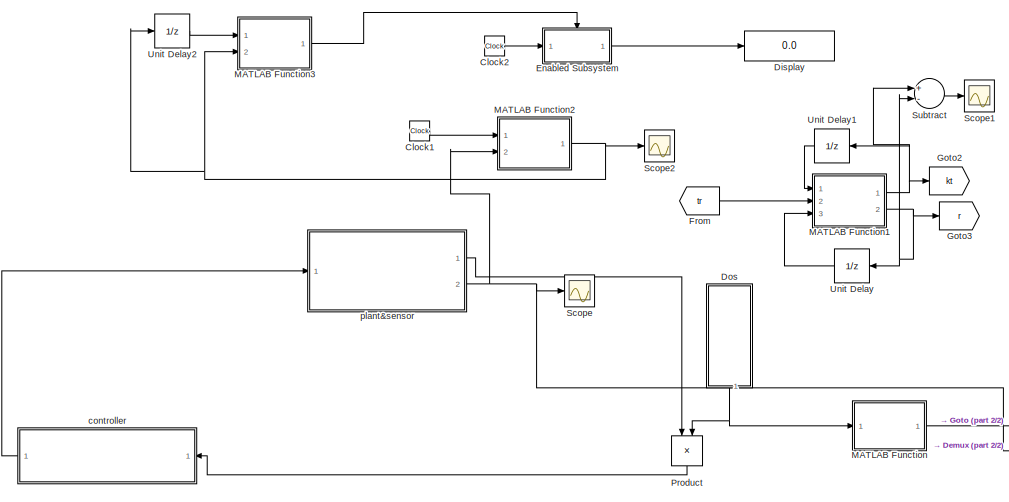
[diagram: root canvas - part 1/2, middle left region]
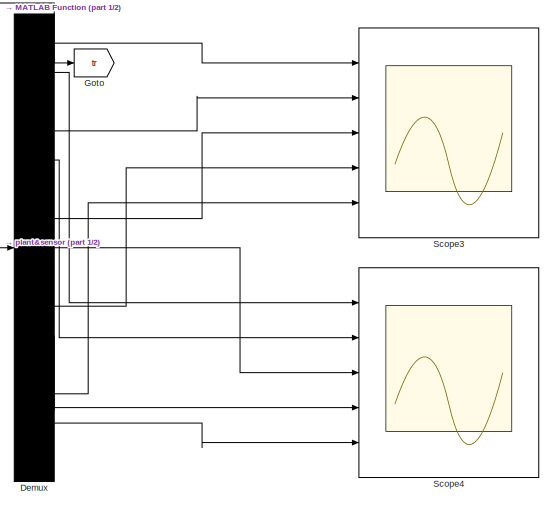
[diagram: root canvas - part 2/2, middle right region]
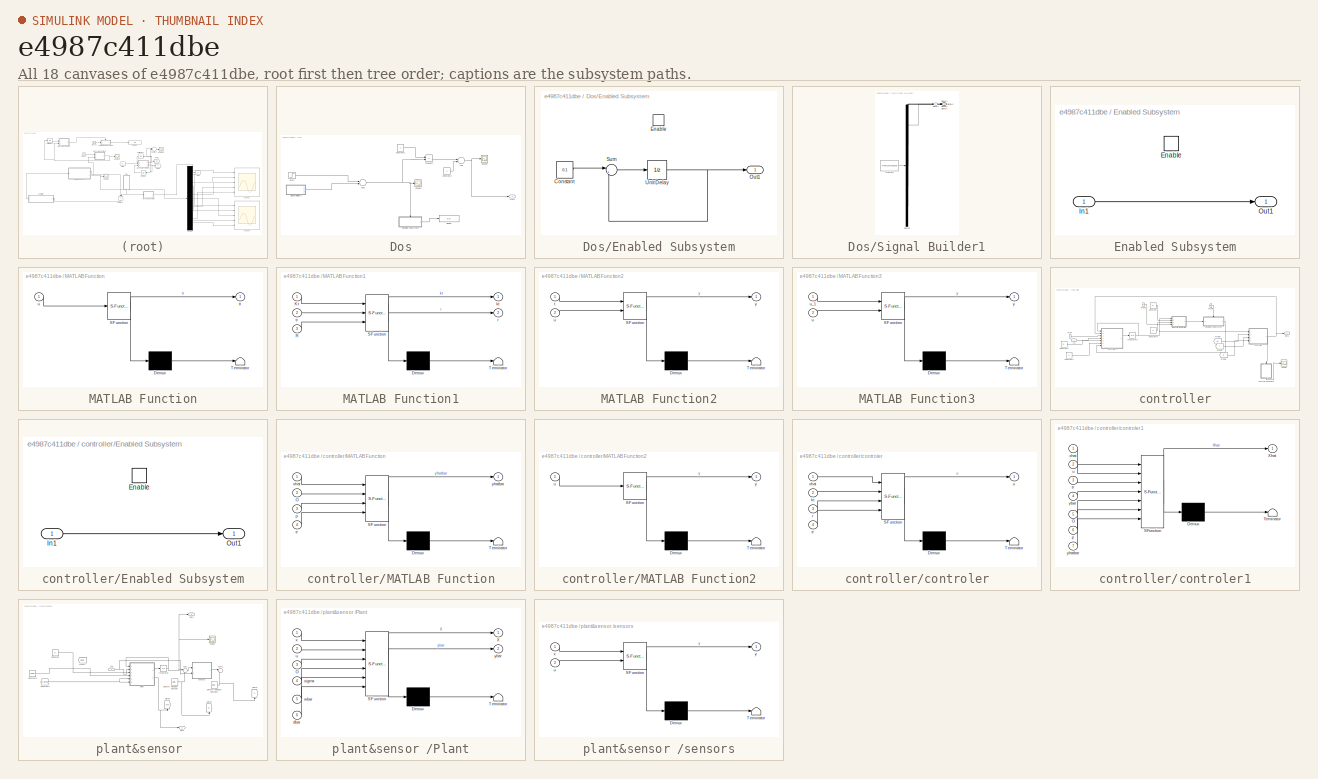
[diagram: thumbnail index - all 18 canvases of the model, root first then tree order]
MODEL slx_e4987c411dbe
KIND model
CONFIG AbsTol = auto
CONFIG EnableMultiTasking = off
CONFIG FixedStep = auto
CONFIG MaxStep = auto
CONFIG MinStep = auto
CONFIG RelTol = 1e-3
CONFIG SampleTimeConstraint = Unconstrained
CONFIG Solver = VariableStepAuto
CONFIG SolverName = VariableStepAuto
CONFIG StartTime = 0.0
CONFIG StopTime = 5
BLOCK [Clock] Clock1
BLOCK [Clock] Clock2
BLOCK [Demux] Demux
  DisplayOption = bar
  Outputs = 15
  Ports = [1, 15]
BLOCK [Display] Display
  Decimation = 1
  Ports = [1]
BLOCK [SubSystem] Dos
  Ports = [0, 1]
  RequestExecContextInheritance = off
BLOCK [Sum] Dos/Add
  InputSameDT = off
  OutDataTypeStr = Inherit: Inherit via internal rule
  Ports = [2, 1]
  SaturateOnIntegerOverflow = off
BLOCK [Sum] Dos/Add1
  InputSameDT = off
  OutDataTypeStr = Inherit: Inherit via internal rule
  Ports = [2, 1]
  SaturateOnIntegerOverflow = off
BLOCK [Constant] Dos/Constant1
  Value = -1
BLOCK [Constant] Dos/Constant2
BLOCK [Display] Dos/Display
  Decimation = 1
  Ports = [1]
BLOCK [SubSystem] Dos/Enabled Subsystem
  Ports = [0, 1, 1]
  RequestExecContextInheritance = off
  TreatAsAtomicUnit = on
BLOCK [Constant] Dos/Enabled Subsystem/Constant
  Value = 0.1
BLOCK [EnablePort] Dos/Enabled Subsystem/Enable
  Ports = []
BLOCK [Outport] Dos/Enabled Subsystem/Out1
  IconDisplay = Port number
BLOCK [Sum] Dos/Enabled Subsystem/Sum
  IconShape = round
  InputSameDT = off
  Inputs = |++
  OutDataTypeStr = Inherit: Inherit via internal rule
  Ports = [2, 1]
  SaturateOnIntegerOverflow = off
BLOCK [UnitDelay] Dos/Enabled Subsystem/Unit Delay
  InputProcessing = Elements as channels (sample based)
  SampleTime = -1
BLOCK [Outport] Dos/Out1
  IconDisplay = Port number
BLOCK [Product] Dos/Product1
  InputSameDT = off
  OutDataTypeStr = Inherit: Inherit via internal rule
  Ports = [2, 1]
  RndMeth = Floor
  SaturateOnIntegerOverflow = off
BLOCK [Scope] Dos/Scope1
  Floating = off
  NumInputPorts = 1
  Ports = [1]
  ScopeSpecificationString = Simulink.scopes.TimeScopeBlockCfg('CurrentConfiguration', extmgr.ConfigurationSet(extmgr.Configuration('Core','General UI',true),extmgr.Configuration('Core','Source UI',true),extmgr.Configuration('Sources','WiredSimulink',true,'DataLoggingVariableName','ScopeData1'),extmgr.Configuration('Visuals','Time Domain',true,'SerializedDisplays',{struct('MinYLimReal','-0.125','MaxYLimReal','1.125','YLabelRe...<+1519ch>
BLOCK [Scope] Dos/Scope2
  Floating = off
  NumInputPorts = 1
  Ports = [1]
  ScopeSpecificationString = Simulink.scopes.TimeScopeBlockCfg('CurrentConfiguration', extmgr.ConfigurationSet(extmgr.Configuration('Core','General UI',true),extmgr.Configuration('Core','Source UI',true),extmgr.Configuration('Sources','WiredSimulink',true,'DataLoggingVariableName','ScopeData1'),extmgr.Configuration('Visuals','Time Domain',true,'SerializedDisplays',{struct('MinYLimReal','-0.125','MaxYLimReal','1.125','YLabelRe...<+1386ch>
BLOCK [SubSystem] Dos/Signal Builder1
  ClipboardFcn = sigbuilder_block('clipboard');
  CloseFcn = sigbuilder_block('close');
  ContinueFcn = sigbuilder_block('continue');
  CopyFcn = sigbuilder_block('copy');
  DeleteFcn = sigbuilder_block('delete');
  LoadFcn = sigbuilder_block('load');
  MaskHideContents = on
  ModelCloseFcn = sigbuilder_block('modelClose');
  NameChangeFcn = sigbuilder_block('namechange');
  OpenFcn = sigbuilder_block('open',[5.4 30 1141.2 522.6 ]);
  PauseFcn = sigbuilder_block('pause');
  Ports = [0, 5]
  PreSaveFcn = sigbuilder_block('preSave');
  RequestExecContextInheritance = off
  StartFcn = sigbuilder_block('start');
  StopFcn = sigbuilder_block('stop');
  Tag = STV Subsys
BLOCK [Demux] Dos/Signal Builder1/Demux
  Outputs = 5
  Ports = [1, 5]
  Tag = STV Demux
BLOCK [FromWorkspace] Dos/Signal Builder1/FromWs
  SampleTime = 0
  Tag = STV FromWs
  VariableName = tuvar
  ZeroCross = on
BLOCK [Outport] Dos/Signal Builder1/Signal 1
  IconDisplay = Port number
  Tag = STV Outport
BLOCK [Outport] Dos/Signal Builder1/Signal 2
  IconDisplay = Port number
  Port = 2
  Tag = STV Outport
BLOCK [Outport] Dos/Signal Builder1/Signal 3
  IconDisplay = Port number
  Port = 3
  Tag = STV Outport
BLOCK [Outport] Dos/Signal Builder1/Signal 4
  IconDisplay = Port number
  Port = 4
  Tag = STV Outport
BLOCK [Outport] Dos/Signal Builder1/Signal 5
  IconDisplay = Port number
  Port = 5
  Tag = STV Outport
BLOCK [Step] Dos/Step
  After = -1
  SampleTime = 5
BLOCK [SubSystem] Enabled Subsystem
  Ports = [1, 1, 1]
  RequestExecContextInheritance = off
  TreatAsAtomicUnit = on
BLOCK [EnablePort] Enabled Subsystem/Enable
  Ports = []
BLOCK [Inport] Enabled Subsystem/In1
  IconDisplay = Port number
BLOCK [Outport] Enabled Subsystem/Out1
  IconDisplay = Port number
BLOCK [From] From
  GotoTag = tr
  TagVisibility = global
BLOCK [Goto] Goto
  GotoTag = tr
  TagVisibility = global
BLOCK [Goto] Goto2
  GotoTag = kt
  TagVisibility = global
BLOCK [Goto] Goto3
  GotoTag = r
  TagVisibility = global
BLOCK [SubSystem] MATLAB Function
  ErrorFcn = Stateflow.Translate.translate
  PermitHierarchicalResolution = ExplicitOnly
  Ports = [1, 1]
  RequestExecContextInheritance = off
  SFBlockType = MATLAB Function
  TreatAsAtomicUnit = on
BLOCK [Demux] MATLAB Function/ Demux 
  Outputs = 1
  Ports = [1, 1]
BLOCK [S-Function] MATLAB Function/ SFunction 
  EnableBusSupport = on
  FunctionName = sf_sfun
  PortCounts = [1 2]
  Ports = [1, 2]
  SFcnIsStateOwnerBlock = off
  SFunctionDeploymentMode = off
  Tag = Stateflow S-Function state 4
BLOCK [Terminator] MATLAB Function/ Terminator 
BLOCK [Outport] MATLAB Function/tr
  IconDisplay = Port number
BLOCK [Inport] MATLAB Function/u
  IconDisplay = Port number
BLOCK [SubSystem] MATLAB Function1
  ErrorFcn = Stateflow.Translate.translate
  PermitHierarchicalResolution = ExplicitOnly
  Ports = [3, 2]
  RequestExecContextInheritance = off
  SFBlockType = MATLAB Function
  TreatAsAtomicUnit = on
BLOCK [Demux] MATLAB Function1/ Demux 
  Outputs = 1
  Ports = [1, 1]
BLOCK [S-Function] MATLAB Function1/ SFunction 
  EnableBusSupport = on
  FunctionName = sf_sfun
  PortCounts = [3 3]
  Ports = [3, 3]
  SFcnIsStateOwnerBlock = off
  SFunctionDeploymentMode = off
  Tag = Stateflow S-Function state 12
BLOCK [Terminator] MATLAB Function1/ Terminator 
BLOCK [Inport] MATLAB Function1/Kt
  IconDisplay = Port number
BLOCK [Inport] MATLAB Function1/R
  IconDisplay = Port number
  Port = 3
BLOCK [Outport] MATLAB Function1/kt
  IconDisplay = Port number
BLOCK [Outport] MATLAB Function1/r
  IconDisplay = Port number
  Port = 2
BLOCK [Inport] MATLAB Function1/tr
  IconDisplay = Port number
  Port = 2
BLOCK [SubSystem] MATLAB Function2
  ErrorFcn = Stateflow.Translate.translate
  PermitHierarchicalResolution = ExplicitOnly
  Ports = [2, 1]
  RequestExecContextInheritance = off
  SFBlockType = MATLAB Function
  TreatAsAtomicUnit = on
BLOCK [Demux] MATLAB Function2/ Demux 
  Outputs = 1
  Ports = [1, 1]
BLOCK [S-Function] MATLAB Function2/ SFunction 
  EnableBusSupport = on
  FunctionName = sf_sfun
  PortCounts = [2 2]
  Ports = [2, 2]
  SFcnIsStateOwnerBlock = off
  SFunctionDeploymentMode = off
  Tag = Stateflow S-Function state 8
BLOCK [Terminator] MATLAB Function2/ Terminator 
BLOCK [Inport] MATLAB Function2/t
  IconDisplay = Port number
BLOCK [Inport] MATLAB Function2/u
  IconDisplay = Port number
  Port = 2
BLOCK [Outport] MATLAB Function2/y
  IconDisplay = Port number
BLOCK [SubSystem] MATLAB Function3
  ErrorFcn = Stateflow.Translate.translate
  PermitHierarchicalResolution = ExplicitOnly
  Ports = [2, 1]
  RequestExecContextInheritance = off
  SFBlockType = MATLAB Function
  TreatAsAtomicUnit = on
BLOCK [Demux] MATLAB Function3/ Demux 
  Outputs = 1
  Ports = [1, 1]
BLOCK [S-Function] MATLAB Function3/ SFunction 
  EnableBusSupport = on
  FunctionName = sf_sfun
  PortCounts = [2 2]
  Ports = [2, 2]
  SFcnIsStateOwnerBlock = off
  SFunctionDeploymentMode = off
  Tag = Stateflow S-Function state 5
BLOCK [Terminator] MATLAB Function3/ Terminator 
BLOCK [Inport] MATLAB Function3/u
  IconDisplay = Port number
  Port = 2
BLOCK [Inport] MATLAB Function3/u_1
  IconDisplay = Port number
BLOCK [Outport] MATLAB Function3/y
  IconDisplay = Port number
BLOCK [Product] Product
  InputSameDT = off
  OutDataTypeStr = Inherit: Inherit via internal rule
  Ports = [2, 1]
  RndMeth = Floor
  SaturateOnIntegerOverflow = off
BLOCK [Scope] Scope
  Floating = off
  NumInputPorts = 1
  Ports = [1]
  ScopeSpecificationString = Simulink.scopes.TimeScopeBlockCfg('CurrentConfiguration', extmgr.ConfigurationSet(extmgr.Configuration('Core','General UI',true),extmgr.Configuration('Core','Source UI',true),extmgr.Configuration('Sources','WiredSimulink',true,'DataLoggingVariableName','xstatespace','DataLogging',true,'DataLoggingSaveFormat','StructureWithTime'),extmgr.Configuration('Visuals','Time Domain',true,'SerializedDisplays...<+1767ch>
BLOCK [Scope] Scope1
  Floating = off
  NumInputPorts = 1
  Ports = [1]
  ScopeSpecificationString = Simulink.scopes.TimeScopeBlockCfg('CurrentConfiguration', extmgr.ConfigurationSet(extmgr.Configuration('Core','General UI',true),extmgr.Configuration('Core','Source UI',true),extmgr.Configuration('Sources','WiredSimulink',true,'DataLoggingVariableName','ScopeData2'),extmgr.Configuration('Visuals','Time Domain',true,'SerializedDisplays',{struct('MinYLimReal','-0.375','MaxYLimReal','3.375','YLabelRe...<+1384ch>
BLOCK [Scope] Scope2
  Floating = off
  NumInputPorts = 1
  Ports = [1]
  ScopeSpecificationString = Simulink.scopes.TimeScopeBlockCfg('CurrentConfiguration', extmgr.ConfigurationSet(extmgr.Configuration('Core','General UI',true),extmgr.Configuration('Core','Source UI',true),extmgr.Configuration('Sources','WiredSimulink',true,'DataLoggingVariableName','nxstatespace','DataLogging',true,'DataLoggingSaveFormat','StructureWithTime'),extmgr.Configuration('Visuals','Time Domain',true,'SerializedDisplay...<+1478ch>
BLOCK [Scope] Scope3
  Floating = off
  NumInputPorts = 5
  Ports = [5]
  ScopeSpecificationString = Simulink.scopes.TimeScopeBlockCfg('CurrentConfiguration', extmgr.ConfigurationSet(extmgr.Configuration('Core','General UI',true),extmgr.Configuration('Core','Source UI',true),extmgr.Configuration('Sources','WiredSimulink',true,'DataLoggingVariableName','ScopeData1'),extmgr.Configuration('Visuals','Time Domain',true,'SerializedDisplays',{struct('MinYLimReal','-8.60772','MaxYLimReal','7.4695','YLabe...<+1467ch>
BLOCK [Scope] Scope4
  Floating = off
  NumInputPorts = 5
  Ports = [5]
  ScopeSpecificationString = Simulink.scopes.TimeScopeBlockCfg('CurrentConfiguration', extmgr.ConfigurationSet(extmgr.Configuration('Core','General UI',true),extmgr.Configuration('Core','Source UI',true),extmgr.Configuration('Sources','WiredSimulink',true,'DataLoggingVariableName','ScopeData2'),extmgr.Configuration('Visuals','Time Domain',true,'SerializedDisplays',{struct('MinYLimReal','-16.4796','MaxYLimReal','9.9564','YLabe...<+1436ch>
BLOCK [Sum] Subtract
  InputSameDT = off
  Inputs = +-
  OutDataTypeStr = Inherit: Inherit via internal rule
  Ports = [2, 1]
  SaturateOnIntegerOverflow = off
BLOCK [UnitDelay] Unit Delay
  InputProcessing = Elements as channels (sample based)
  SampleTime = 0.1
BLOCK [UnitDelay] Unit Delay1
  InputProcessing = Elements as channels (sample based)
  SampleTime = 0.1
BLOCK [UnitDelay] Unit Delay2
  InputProcessing = Elements as channels (sample based)
  SampleTime = 0.1
BLOCK [SubSystem] controller
  Ports = [1, 1]
  RequestExecContextInheritance = off
BLOCK [Constant] controller/Constant1
  Value = O
BLOCK [Constant] controller/Constant2
  Value = p
BLOCK [Constant] controller/Constant3
  Value = O
BLOCK [Constant] controller/Constant4
  Value = p
BLOCK [SubSystem] controller/Enabled Subsystem
  Ports = [1, 1, 1]
  RequestExecContextInheritance = off
  TreatAsAtomicUnit = on
BLOCK [EnablePort] controller/Enabled Subsystem/Enable
  Ports = []
BLOCK [Inport] controller/Enabled Subsystem/In1
  IconDisplay = Port number
BLOCK [Outport] controller/Enabled Subsystem/Out1
  IconDisplay = Port number
BLOCK [From] controller/From
  GotoTag = tr
  TagVisibility = global
BLOCK [From] controller/From1
  GotoTag = tr
  TagVisibility = global
BLOCK [From] controller/From2
  GotoTag = tr
  TagVisibility = global
BLOCK [From] controller/From3
  GotoTag = kt
  TagVisibility = global
BLOCK [From] controller/From4
  GotoTag = r
  TagVisibility = global
BLOCK [From] controller/From5
  GotoTag = tr
  TagVisibility = global
BLOCK [Inport] controller/In1
  IconDisplay = Port number
BLOCK [Integrator] controller/Integrator1
  InitialCondition = [-7;-6;-5;-4;-3;-2;-1;0;1;2;3;4;5;6;7]
  Ports = [1, 1]
BLOCK [SubSystem] controller/MATLAB Function
  ErrorFcn = Stateflow.Translate.translate
  PermitHierarchicalResolution = ExplicitOnly
  Ports = [4, 1]
  RequestExecContextInheritance = off
  SFBlockType = MATLAB Function
  TreatAsAtomicUnit = on
BLOCK [Demux] controller/MATLAB Function/ Demux 
  Outputs = 1
  Ports = [1, 1]
BLOCK [S-Function] controller/MATLAB Function/ SFunction 
  EnableBusSupport = on
  FunctionName = sf_sfun
  PortCounts = [4 2]
  Ports = [4, 2]
  SFcnIsStateOwnerBlock = off
  SFunctionDeploymentMode = off
  Tag = Stateflow S-Function state 3
BLOCK [Terminator] controller/MATLAB Function/ Terminator 
BLOCK [Inport] controller/MATLAB Function/O
  IconDisplay = Port number
  Port = 2
BLOCK [Inport] controller/MATLAB Function/p
  IconDisplay = Port number
  Port = 3
BLOCK [Inport] controller/MATLAB Function/tr
  IconDisplay = Port number
  Port = 4
BLOCK [Inport] controller/MATLAB Function/xhat
  IconDisplay = Port number
BLOCK [Outport] controller/MATLAB Function/yhatbar
  IconDisplay = Port number
BLOCK [SubSystem] controller/MATLAB Function2
  ErrorFcn = Stateflow.Translate.translate
  PermitHierarchicalResolution = ExplicitOnly
  Ports = [1, 1]
  RequestExecContextInheritance = off
  SFBlockType = MATLAB Function
  TreatAsAtomicUnit = on
BLOCK [Demux] controller/MATLAB Function2/ Demux 
  Outputs = 1
  Ports = [1, 1]
BLOCK [S-Function] controller/MATLAB Function2/ SFunction 
  EnableBusSupport = on
  FunctionName = sf_sfun
  PortCounts = [1 2]
  Ports = [1, 2]
  SFcnIsStateOwnerBlock = off
  SFunctionDeploymentMode = off
  Tag = Stateflow S-Function state 9
BLOCK [Terminator] controller/MATLAB Function2/ Terminator 
BLOCK [Inport] controller/MATLAB Function2/u
  IconDisplay = Port number
BLOCK [Outport] controller/MATLAB Function2/y
  IconDisplay = Port number
BLOCK [Outport] controller/Out1
  IconDisplay = Port number
BLOCK [Scope] controller/Scope
  Floating = off
  NumInputPorts = 1
  Ports = [1]
  ScopeSpecificationString = Simulink.scopes.TimeScopeBlockCfg('CurrentConfiguration', extmgr.ConfigurationSet(extmgr.Configuration('Core','General UI',true),extmgr.Configuration('Core','Source UI',true),extmgr.Configuration('Sources','WiredSimulink',true,'DataLoggingVariableName','ustatespace','DataLogging',true,'DataLoggingSaveFormat','StructureWithTime'),extmgr.Configuration('Visuals','Time Domain',true,'SerializedDisplays...<+1473ch>
BLOCK [SubSystem] controller/controler
  ErrorFcn = Stateflow.Translate.translate
  PermitHierarchicalResolution = ExplicitOnly
  Ports = [4, 1]
  RequestExecContextInheritance = off
  SFBlockType = MATLAB Function
  TreatAsAtomicUnit = on
BLOCK [Demux] controller/controler/ Demux 
  Outputs = 1
  Ports = [1, 1]
BLOCK [S-Function] controller/controler/ SFunction 
  EnableBusSupport = on
  FunctionName = sf_sfun
  PortCounts = [4 2]
  Ports = [4, 2]
  SFcnIsStateOwnerBlock = off
  SFunctionDeploymentMode = off
  Tag = Stateflow S-Function state 1
BLOCK [Terminator] controller/controler/ Terminator 
BLOCK [Inport] controller/controler/kt
  IconDisplay = Port number
  Port = 2
BLOCK [Inport] controller/controler/r
  IconDisplay = Port number
  Port = 3
BLOCK [Inport] controller/controler/tr
  IconDisplay = Port number
  Port = 4
BLOCK [Outport] controller/controler/u
  IconDisplay = Port number
BLOCK [Inport] controller/controler/xhat
  IconDisplay = Port number
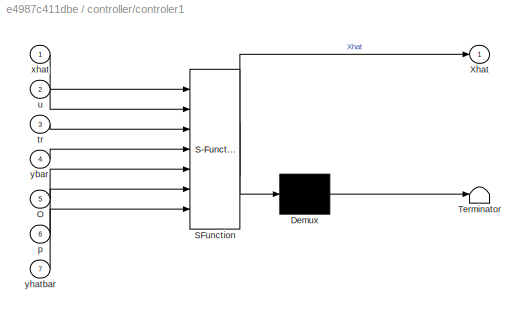
BLOCK [SubSystem] controller/controler1
  ErrorFcn = Stateflow.Translate.translate
  PermitHierarchicalResolution = ExplicitOnly
  Ports = [7, 1]
  RequestExecContextInheritance = off
  SFBlockType = MATLAB Function
  TreatAsAtomicUnit = on
BLOCK [Demux] controller/controler1/ Demux 
  Outputs = 1
  Ports = [1, 1]
BLOCK [S-Function] controller/controler1/ SFunction 
  EnableBusSupport = on
  FunctionName = sf_sfun
  PortCounts = [7 2]
  Ports = [7, 2]
  SFcnIsStateOwnerBlock = off
  SFunctionDeploymentMode = off
  Tag = Stateflow S-Function state 2
BLOCK [Terminator] controller/controler1/ Terminator 
BLOCK [Inport] controller/controler1/O
  IconDisplay = Port number
  Port = 5
BLOCK [Outport] controller/controler1/Xhat
  IconDisplay = Port number
BLOCK [Inport] controller/controler1/p
  IconDisplay = Port number
  Port = 6
BLOCK [Inport] controller/controler1/tr
  IconDisplay = Port number
  Port = 3
BLOCK [Inport] controller/controler1/u
  IconDisplay = Port number
  Port = 2
BLOCK [Inport] controller/controler1/xhat
  IconDisplay = Port number
BLOCK [Inport] controller/controler1/ybar
  IconDisplay = Port number
  Port = 4
BLOCK [Inport] controller/controler1/yhatbar
  IconDisplay = Port number
  Port = 7
BLOCK [SubSystem] plant&sensor 
  Ports = [1, 2]
  RequestExecContextInheritance = off
BLOCK [Constant] plant&sensor /Constant
  Value = O
BLOCK [Constant] plant&sensor /Constant1
  Value = sigma
BLOCK [Constant] plant&sensor /Constant2
  Value = 0.01*rand(60,1)
BLOCK [From] plant&sensor /From1
  GotoTag = ubar
BLOCK [Goto] plant&sensor /Goto1
  GotoTag = d
  TagVisibility = global
BLOCK [Goto] plant&sensor /Goto2
  GotoTag = w
  TagVisibility = global
BLOCK [Goto] plant&sensor /Goto3
  GotoTag = ybar
  TagVisibility = global
BLOCK [Inport] plant&sensor /In1
  IconDisplay = Port number
BLOCK [Integrator] plant&sensor /Integrator
  InitialCondition = [-7;-6;-5;-4;-3;-2;-1;0;1;2;3;4;5;6;7]
  Ports = [1, 1]
BLOCK [Outport] plant&sensor /Out1
  IconDisplay = Port number
BLOCK [Outport] plant&sensor /Out2
  IconDisplay = Port number
  Port = 2
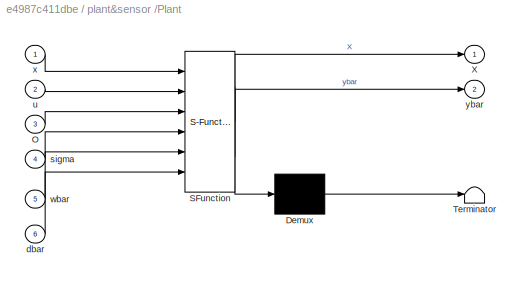
BLOCK [SubSystem] plant&sensor /Plant
  ErrorFcn = Stateflow.Translate.translate
  PermitHierarchicalResolution = ExplicitOnly
  Ports = [6, 2]
  RequestExecContextInheritance = off
  SFBlockType = MATLAB Function
  TreatAsAtomicUnit = on
BLOCK [Demux] plant&sensor /Plant/ Demux 
  Outputs = 1
  Ports = [1, 1]
BLOCK [S-Function] plant&sensor /Plant/ SFunction 
  EnableBusSupport = on
  FunctionName = sf_sfun
  PortCounts = [6 3]
  Ports = [6, 3]
  SFcnIsStateOwnerBlock = off
  SFunctionDeploymentMode = off
  Tag = Stateflow S-Function state 6
BLOCK [Terminator] plant&sensor /Plant/ Terminator 
BLOCK [Inport] plant&sensor /Plant/O
  IconDisplay = Port number
  Port = 3
BLOCK [Outport] plant&sensor /Plant/X
  IconDisplay = Port number
BLOCK [Inport] plant&sensor /Plant/dbar
  IconDisplay = Port number
  Port = 6
BLOCK [Inport] plant&sensor /Plant/sigma
  IconDisplay = Port number
  Port = 4
BLOCK [Inport] plant&sensor /Plant/u
  IconDisplay = Port number
  Port = 2
BLOCK [Inport] plant&sensor /Plant/wbar
  IconDisplay = Port number
  Port = 5
BLOCK [Inport] plant&sensor /Plant/x
  IconDisplay = Port number
BLOCK [Outport] plant&sensor /Plant/ybar
  IconDisplay = Port number
  Port = 2
BLOCK [Scope] plant&sensor /Scope
  Floating = off
  NumInputPorts = 1
  Ports = [1]
  ScopeSpecificationString = Simulink.scopes.TimeScopeBlockCfg('CurrentConfiguration', extmgr.ConfigurationSet(extmgr.Configuration('Core','General UI',true),extmgr.Configuration('Core','Source UI',true),extmgr.Configuration('Sources','WiredSimulink',true,'DataLoggingVariableName','ScopeData3'),extmgr.Configuration('Visuals','Time Domain',true,'SerializedDisplays',{struct('MinYLimReal','-4.94599','MaxYLimReal','7.40492','YLab...<+1430ch>
BLOCK [Sum] plant&sensor /Sum
  IconShape = round
  InputSameDT = off
  Inputs = |++
  OutDataTypeStr = Inherit: Inherit via internal rule
  Ports = [2, 1]
  SaturateOnIntegerOverflow = off
BLOCK [Sum] plant&sensor /Sum1
  IconShape = round
  InputSameDT = off
  Inputs = |++
  OutDataTypeStr = Inherit: Inherit via internal rule
  Ports = [2, 1]
  SaturateOnIntegerOverflow = off
BLOCK [UniformRandomNumber] plant&sensor /Uniform Random Number
  Maximum = 0.01
  Minimum = -0.01
  SampleTime = Ts
BLOCK [UniformRandomNumber] plant&sensor /Uniform Random Number1
  Maximum = 0.01
  Minimum = -0.01
  SampleTime = Ts
BLOCK [SubSystem] plant&sensor /sensors
  ErrorFcn = Stateflow.Translate.translate
  PermitHierarchicalResolution = ExplicitOnly
  Ports = [2, 1]
  RequestExecContextInheritance = off
  SFBlockType = MATLAB Function
  TreatAsAtomicUnit = on
BLOCK [Demux] plant&sensor /sensors/ Demux 
  Outputs = 1
  Ports = [1, 1]
BLOCK [S-Function] plant&sensor /sensors/ SFunction 
  EnableBusSupport = on
  FunctionName = sf_sfun
  PortCounts = [2 2]
  Ports = [2, 2]
  SFcnIsStateOwnerBlock = off
  SFunctionDeploymentMode = off
  Tag = Stateflow S-Function state 7
BLOCK [Terminator] plant&sensor /sensors/ Terminator 
BLOCK [Inport] plant&sensor /sensors/u
  IconDisplay = Port number
  Port = 2
BLOCK [Inport] plant&sensor /sensors/x
  IconDisplay = Port number
BLOCK [Outport] plant&sensor /sensors/y
  IconDisplay = Port number
LINE Clock1:1 -> MATLAB Function2:1
LINE Clock2:1 -> Enabled Subsystem:1
LINE Demux:1 -> Scope3:1
LINE Demux:10 -> Scope3:4
LINE Demux:11 -> Scope4:4
LINE Demux:13 -> Scope3:5
LINE Demux:14 -> Scope4:5
LINE Demux:2 -> Scope4:1
LINE Demux:4 -> Scope3:2
LINE Demux:5 -> Scope4:2
LINE Demux:7 -> Scope3:3
LINE Demux:8 -> Scope4:3
NET Dos/Add1:1 -> Dos/Enabled Subsystem:enable, Dos/Product1:2, Dos/Scope1:1
NET Dos/Add:1 -> Dos/Out1:1, Dos/Scope2:1
LINE Dos/Constant1:1 -> Dos/Product1:1
LINE Dos/Constant2:1 -> Dos/Add:2
LINE Dos/Enabled Subsystem/Constant:1 -> Dos/Enabled Subsystem/Sum:1
LINE Dos/Enabled Subsystem/Sum:1 -> Dos/Enabled Subsystem/Unit Delay:1
NET Dos/Enabled Subsystem/Unit Delay:1 -> Dos/Enabled Subsystem/Out1:1, Dos/Enabled Subsystem/Sum:2
LINE Dos/Enabled Subsystem:1 -> Dos/Display:1
LINE Dos/Product1:1 -> Dos/Add:1
LINE Dos/Signal Builder1:3 -> Dos/Add1:2
LINE Dos/Step:1 -> Dos/Add1:1
NET Dos:1 -> MATLAB Function:1, Product:2
LINE Enabled Subsystem/In1:1 -> Enabled Subsystem/Out1:1
LINE Enabled Subsystem:1 -> Display:1
LINE From:1 -> MATLAB Function1:2
NET MATLAB Function1:1 -> Goto2:1, Subtract:1, Unit Delay1:1
NET MATLAB Function1:2 -> Goto3:1, Subtract:2, Unit Delay:1
NET MATLAB Function2:1 -> MATLAB Function3:2, Scope2:1, Unit Delay2:1
LINE MATLAB Function3:1 -> Enabled Subsystem:enable
LINE MATLAB Function:1 -> Goto:1
LINE Product:1 -> controller:1
LINE Subtract:1 -> Scope1:1
LINE Unit Delay1:1 -> MATLAB Function1:1
LINE Unit Delay2:1 -> MATLAB Function3:1
LINE Unit Delay:1 -> MATLAB Function1:3
LINE controller/Constant1:1 -> controller/controler1:5
LINE controller/Constant2:1 -> controller/controler1:6
LINE controller/Constant3:1 -> controller/MATLAB Function:2
LINE controller/Constant4:1 -> controller/MATLAB Function:3
LINE controller/Enabled Subsystem/In1:1 -> controller/Enabled Subsystem/Out1:1
LINE controller/Enabled Subsystem:1 -> controller/controler1:7
LINE controller/From1:1 -> controller/MATLAB Function:4
LINE controller/From2:1 -> controller/Enabled Subsystem:enable
LINE controller/From3:1 -> controller/controler:2
LINE controller/From4:1 -> controller/controler:3
LINE controller/From5:1 -> controller/controler:4
LINE controller/From:1 -> controller/controler1:3
LINE controller/In1:1 -> controller/controler1:4
NET controller/Integrator1:1 -> controller/MATLAB Function:1, controller/controler1:1, controller/controler:1
LINE controller/MATLAB Function2:1 -> controller/Scope:1
LINE controller/MATLAB Function:1 -> controller/Enabled Subsystem:1
LINE controller/controler1:1 -> controller/Integrator1:1
NET controller/controler:1 -> controller/MATLAB Function2:1, controller/Out1:1, controller/controler1:2
LINE controller:1 -> plant&sensor :1
LINE plant&sensor /Constant1:1 -> plant&sensor /Plant:4
NET plant&sensor /Constant2:1 -> plant&sensor /Plant:5, plant&sensor /Plant:6
LINE plant&sensor /Constant:1 -> plant&sensor /Plant:3
NET plant&sensor /In1:1 -> plant&sensor /Plant:2, plant&sensor /sensors:2
NET plant&sensor /Integrator:1 -> plant&sensor /Out2:1, plant&sensor /Plant:1, plant&sensor /Scope:1, plant&sensor /Sum:1
LINE plant&sensor /Plant:1 -> plant&sensor /Integrator:1
NET plant&sensor /Plant:2 -> plant&sensor /Goto3:1, plant&sensor /Out1:1
LINE plant&sensor /Sum:1 -> plant&sensor /sensors:1
NET plant&sensor /Uniform Random Number1:1 -> plant&sensor /Goto1:1, plant&sensor /Sum1:2
NET plant&sensor /Uniform Random Number:1 -> plant&sensor /Goto2:1, plant&sensor /Sum:2
LINE plant&sensor /sensors:1 -> plant&sensor /Sum1:1
LINE plant&sensor :1 -> Product:1
NET plant&sensor :2 -> Demux:1, MATLAB Function2:2, Scope:1
note: NET lines group one-source signal fan-out (src -> all destinations, sorted); 1:1 wires keep LINE
CHART controller/controler states=1 transitions=1
  STATE_LABEL 'eML_blk_kernel()'
  STATE_LABEL "SCRIPT:\nfunction u = fcn(xhat,kt,r,tr)\nK=[1.0766 -.3101 0];\n%Kmpc=kron(eye(5),[1 0 0 0])*pinv(F0'*Q*F0+0.1*eye(20))*(F0'*Q*O0)\nc=0.1;\nL=[ 2 0 0 0 -1; -1 2 0 0 0; -1 0 1 0 0; 0 -1 0 1 0; 0 -1 -1 -1 3];\n% u=-c*kron(L,K)*xhat;\nK=[1.0766 -.3101 0];\nc=0.5;\nA=[.9226 -.6330 0;1 0 0;0 1 0];\nB=[1;0;0];\nL=[ 2 0 0 0 -1; -1 2 0 0 0; -1 0 1 0 0; 0 -1 0 1 0; 0 -1 -1 -1 3];\nA0=kron(eye(5),A);\nB0=kron(eye(5),B);\n...<+958ch>"
CHART controller/controler1 states=1 transitions=1
  STATE_LABEL 'eML_blk_kernel()'
  STATE_LABEL 'SCRIPT:\nfunction Xhat = fcn(xhat,u,tr,ybar,O,p,yhatbar)\n\n  A=[-25.7442 -14.1298 -8.6868;16 0 0;0 16 0];\n  B=[8;0;0];\n  C=[2.3498 -0.2552 3.3462;3.8307 -3.7641 3.9829;4.4177 -5.2315 4.9];\nA_bar=[.9226 -.6330 0;1 0 0;0 1 0];\nB_bar=[1;0;0];\nC=[2.3498 -0.2552 3.3462;3.8307 -3.7641 3.9829;4.4177 -5.2315 4.9];\nG=[0.0450 .0187 .0338;.0005 .0252 .045;-.0631 -.0445 -.0827];\nGsigma=[G,zeros(3,9)];\nFbar=[B_b...<+384ch>'
CHART controller/MATLAB Function states=1 transitions=1
  STATE_LABEL 'eML_blk_kernel()'
  STATE_LABEL "SCRIPT:\nfunction yhatbar = fcn(xhat,O,p,tr)\nA_bar=[.9226 -.6330 0;1 0 0;0 1 0];\nB_bar=[1;0;0];\nC_bar=[1 0.2 0.6;0.5 0.6 1.2;0.5 0.9 1.5];\nF_bar=[B_bar zeros(3,3)];\nFF=[0.4759 0.2743 -.1959 -.0584;0.3476 -.1537 -.0886 .0633;0 0 0 0]';\nF=[zeros(3,1) zeros(3,1) zeros(3,1) zeros(3,1);\n    C_bar*B_bar zeros(3,1) zeros(3,1) zeros(3,1);\n    C_bar*A_bar*B_bar C_bar*B_bar zeros(3,1) zeros(3,1);\n    C_bar*A...<+173ch>"
CHART MATLAB Function states=1 transitions=1
  STATE_LABEL 'eML_blk_kernel()'
  STATE_LABEL 'SCRIPT:\nfunction tr = fcn(u)\nif u==1\n    tr=1\nelse\n    tr=0\nend\n\n'
CHART MATLAB Function3 states=1 transitions=1
  STATE_LABEL 'eML_blk_kernel()'
  STATE_LABEL 'SCRIPT:\nfunction y = fcn(u_1,u)\nif (u-u_1<.001)\ny=0;\nelse\ny=1;\nend'
CHART plant&sensor
/Plant states=1 transitions=1
  STATE_LABEL 'eML_blk_kernel()'
  STATE_LABEL 'SCRIPT:\nfunction [X,ybar] = fcn(x,u,O,sigma,wbar,dbar)\nA=[-25.7442 -14.1298 -8.6868;16 0 0;0 16 0];\nB=[8;0;0];\nC=[2.3498 -0.2552 3.3462;3.8307 -3.7641 3.9829;4.4177 -5.2315 4.9];\nD=[-.5478;-.4304;-.4304];\nA0=kron(eye(5),A);\nB0=kron(eye(5),B);\nO0=kron(eye(5),O);\nsigma0=kron(eye(5),sigma)\nX =A0*x+B0*u;\nybar = O0*x+sigma0*wbar+dbar;\n'
CHART plant&sensor
/sensors states=1 transitions=1
  STATE_LABEL 'eML_blk_kernel()'
  STATE_LABEL 'SCRIPT:\nfunction y = fcn(x,u)\nA=[-25.7442 -14.1298 -8.6868;16 0 0;0 16 0];\nB=[8;0;0];\nC=[2.3498 -0.2552 3.3462;3.8307 -3.7641 3.9829;4.4177 -5.2315 4.9];\nD=[-.5478;-.4304;-.4304];\nC0=kron(eye(5),C);\nD0=kron(eye(5),D);\ny=C0*x+D0*u;\n\n'
CHART MATLAB Function2 states=1 transitions=1
  STATE_LABEL 'eML_blk_kernel()'
  STATE_LABEL 'SCRIPT:\nfunction y = fcn(t, u)\ny=norm(u);\n'
CHART controller/MATLAB Function2 states=1 transitions=1
  STATE_LABEL 'eML_blk_kernel()'
  STATE_LABEL 'SCRIPT:\nfunction y = fcn( u)\ny=norm(u);\n'
CHART MATLAB Function1 states=1 transitions=1
  STATE_LABEL 'eML_blk_kernel()'
  STATE_LABEL 'SCRIPT:\nfunction [kt,r] = fcn( Kt,tr,R)\n\nkt=Kt+1;\nif tr==1\n    r=R+1\nelse\n    r=R;\nend\n\n'
